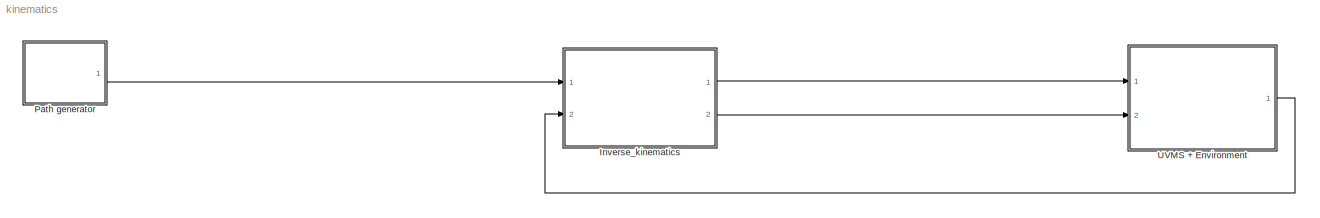
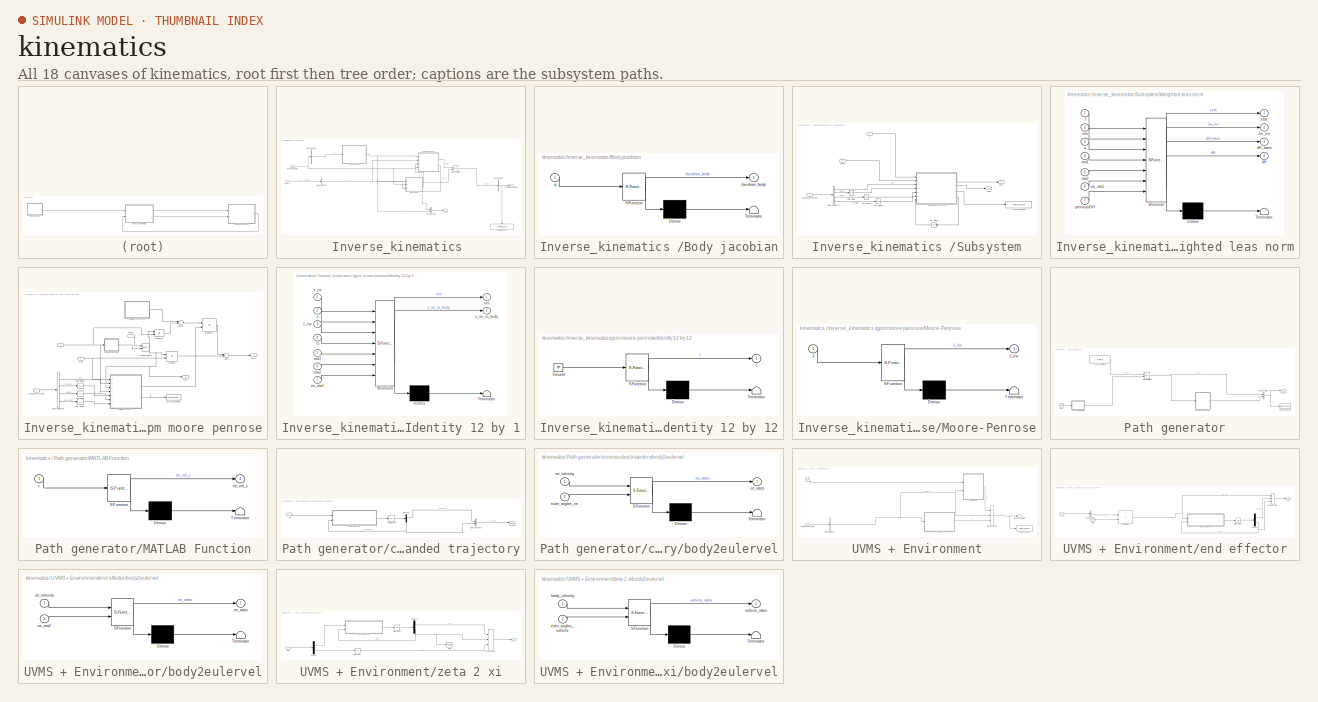
[diagram: thumbnail index - all 18 canvases of the model, root first then tree order]
MODEL kinematics
KIND model
BLOCK [SubSystem] Inverse_kinematics 
  FunctionWithSeparateData = off
  MaskHideContents = off
  MinAlgLoopOccurrences = off
  Opaque = off
  Ports = [2, 2]
  PropExecContextOutsideSubsystem = off
  RTWSystemCode = Auto
  RequestExecContextInheritance = off
  SID = 111
BLOCK [SubSystem] Inverse_kinematics /Body jacobian
  ErrorFcn = Stateflow.Translate.translate
  FunctionWithSeparateData = off
  MaskDescription = Embedded MATLAB block
  MaskDisplay = bgColor = Simulink.Root.ColorString2Rgb(get_param(gcbh, 'BackgroundColor')); image(imread('private/eml_membrane_16.png','png','BackgroundColor',bgColor(1:3)),'center'); disp([10 10 'fcn']);  <repeated x5 — deduplicated; at blocks: Body jacobian, MATLAB Function, body2eulervel>
  MaskHideContents = off
  MaskIconFrame = on
  MaskIconOpaque = off
  MaskIconRotate = none
  MaskIconUnits = normalized
  MaskPortRotate = default
  MaskSelfModifiable = on
  MaskType = Stateflow
  MinAlgLoopOccurrences = off
  Opaque = off
  PermitHierarchicalResolution = ExplicitOnly
  Ports = [1, 1]
  PropExecContextOutsideSubsystem = off
  RTWSystemCode = Auto
  RequestExecContextInheritance = off
  SFBlockType = MATLAB Function
  SID = 4
  TreatAsAtomicUnit = on
BLOCK [Demux] Inverse_kinematics /Body jacobian/ Demux 
  Outputs = 1
  Ports = [1, 1]
  SID = 4::20
BLOCK [S-Function] Inverse_kinematics /Body jacobian/ SFunction 
  EnableBusSupport = on
  FunctionName = sf_sfun
  PortCounts = [1 2]
  Ports = [1, 2]
  SID = 4::19
  Tag = Stateflow S-Function kinematics 2
BLOCK [Terminator] Inverse_kinematics /Body jacobian/ Terminator 
  SID = 4::22
BLOCK [Outport] Inverse_kinematics /Body jacobian/Jacobian_body
  IconDisplay = Port number
  SID = 4::5
BLOCK [Inport] Inverse_kinematics /Body jacobian/q
  IconDisplay = Port number
  SID = 4::1
BLOCK [BusCreator] Inverse_kinematics /Bus\nCreator
  DisplayOption = bar
  Inputs = 1
  Ports = [1, 1]
  SID = 327
BLOCK [BusCreator] Inverse_kinematics /Bus\nCreator1
  DisplayOption = bar
  Inputs = 2
  Ports = [2, 1]
  SID = 394
BLOCK [BusSelector] Inverse_kinematics /Bus\nSelector
  OutputSignals = xi.q
  Ports = [1, 1]
  SID = 154
BLOCK [BusSelector] Inverse_kinematics /Bus\nSelector1
  OutputSignals = v_ee_c
  Ports = [1, 1]
  SID = 503
BLOCK [Outport] Inverse_kinematics /J,J_inv
  IconDisplay = Port number
  SID = 395
BLOCK [Reference] Inverse_kinematics /Manual Switch  REF=simulink/Signal\nRouting/Manual Switch
  Ports = [2, 1]
  SID = 533
  SourceBlock = simulink/Signal\nRouting/Manual Switch
  SourceType = Manual Switch
  action = 0
  sw = 0
  varsize = off
BLOCK [SubSystem] Inverse_kinematics /Subsystem
  FunctionWithSeparateData = off
  MaskHideContents = off
  MinAlgLoopOccurrences = off
  Opaque = off
  Ports = [3, 2]
  PropExecContextOutsideSubsystem = off
  RTWSystemCode = Auto
  RequestExecContextInheritance = off
  SID = 535
BLOCK [BusSelector] Inverse_kinematics /Subsystem/Bus\nSelector
  OutputSignals = xi.q,xi.eta1,xi.eta2,ee.ee_eta1
  Ports = [1, 4]
  SID = 541
BLOCK [Inport] Inverse_kinematics /Subsystem/J
  IconDisplay = Port number
  SID = 536
BLOCK [ToWorkspace] Inverse_kinematics /Subsystem/To Workspace1
  MaxDataPoints = inf
  Ports = [1]
  SID = 556
  SampleTime = -1
  SaveFormat = Timeseries
  VariableName = H_matrix
BLOCK [UnitDelay] Inverse_kinematics /Subsystem/Unit Delay
  InputProcessing = Elements as channels (sample based)
  SID = 546
  SampleTime = -1
  X0 = initial_eta1
BLOCK [UnitDelay] Inverse_kinematics /Subsystem/Unit Delay1
  InputProcessing = Elements as channels (sample based)
  SID = 547
  SampleTime = -1
  X0 = initial_eta2
BLOCK [UnitDelay] Inverse_kinematics /Subsystem/Unit Delay2
  InputProcessing = Elements as channels (sample based)
  SID = 548
  SampleTime = -1
  X0 = initial_ee_eta(4:6)
BLOCK [UnitDelay] Inverse_kinematics /Subsystem/Unit Delay3
  InputProcessing = Elements as channels (sample based)
  SID = 557
  SampleTime = -1
  X0 = zeros(12,12)
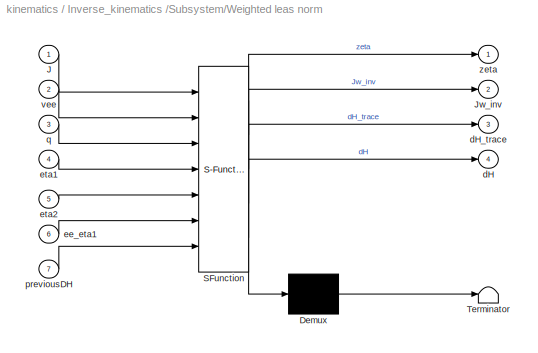
BLOCK [SubSystem] Inverse_kinematics /Subsystem/Weighted leas norm
  ErrorFcn = Stateflow.Translate.translate
  FunctionWithSeparateData = off
  MaskDescription = Embedded MATLAB block
  MaskDisplay = bgColor = Simulink.Root.ColorString2Rgb(get_param(gcbh, 'BackgroundColor')); image(imread('private/eml_membrane_16.png','png','BackgroundColor',bgColor(1:3)),'center'); disp([10 10 'wln']);
  MaskHideContents = off
  MaskIconFrame = on
  MaskIconOpaque = off
  MaskIconRotate = none
  MaskIconUnits = normalized
  MaskPortRotate = default
  MaskSelfModifiable = on
  MaskType = Stateflow
  MinAlgLoopOccurrences = off
  Opaque = off
  PermitHierarchicalResolution = ExplicitOnly
  Ports = [7, 4]
  PropExecContextOutsideSubsystem = off
  RTWSystemCode = Auto
  RequestExecContextInheritance = off
  SFBlockType = MATLAB Function
  SID = 532
  TreatAsAtomicUnit = on
BLOCK [Demux] Inverse_kinematics /Subsystem/Weighted leas norm/ Demux 
  Outputs = 1
  Ports = [1, 1]
  SID = 532::20
BLOCK [S-Function] Inverse_kinematics /Subsystem/Weighted leas norm/ SFunction 
  EnableBusSupport = on
  FunctionName = sf_sfun
  Parameters = a,alpha,d,qmax,qmin
  PortCounts = [7 5]
  Ports = [7, 5]
  SID = 532::19
  Tag = Stateflow S-Function kinematics 6
BLOCK [Terminator] Inverse_kinematics /Subsystem/Weighted leas norm/ Terminator 
  SID = 532::22
BLOCK [Inport] Inverse_kinematics /Subsystem/Weighted leas norm/J
  IconDisplay = Port number
  SID = 532::1
BLOCK [Outport] Inverse_kinematics /Subsystem/Weighted leas norm/Jw_inv
  IconDisplay = Port number
  Port = 2
  SID = 532::33
BLOCK [Outport] Inverse_kinematics /Subsystem/Weighted leas norm/dH
  IconDisplay = Port number
  Port = 4
  SID = 532::35
BLOCK [Outport] Inverse_kinematics /Subsystem/Weighted leas norm/dH_trace
  IconDisplay = Port number
  Port = 3
  SID = 532::34
BLOCK [Inport] Inverse_kinematics /Subsystem/Weighted leas norm/ee_eta1
  IconDisplay = Port number
  Port = 6
  SID = 532::29
BLOCK [Inport] Inverse_kinematics /Subsystem/Weighted leas norm/eta1
  IconDisplay = Port number
  Port = 4
  SID = 532::26
BLOCK [Inport] Inverse_kinematics /Subsystem/Weighted leas norm/eta2
  IconDisplay = Port number
  Port = 5
  SID = 532::25
BLOCK [Inport] Inverse_kinematics /Subsystem/Weighted leas norm/previousDH
  IconDisplay = Port number
  Port = 7
  SID = 532::36
BLOCK [Inport] Inverse_kinematics /Subsystem/Weighted leas norm/q
  IconDisplay = Port number
  Port = 3
  SID = 532::24
BLOCK [Inport] Inverse_kinematics /Subsystem/Weighted leas norm/vee
  IconDisplay = Port number
  Port = 2
  SID = 532::23
BLOCK [Outport] Inverse_kinematics /Subsystem/Weighted leas norm/zeta
  IconDisplay = Port number
  SID = 532::5
BLOCK [Outport] Inverse_kinematics /Subsystem/jw_inv
  IconDisplay = Port number
  Port = 2
  SID = 549
BLOCK [Inport] Inverse_kinematics /Subsystem/measured states
  IconDisplay = Port number
  Port = 2
  SID = 537
BLOCK [Inport] Inverse_kinematics /Subsystem/v_ee_c
  IconDisplay = Port number
  Port = 3
  SID = 539
BLOCK [Outport] Inverse_kinematics /Subsystem/zeta
  IconDisplay = Port number
  SID = 538
BLOCK [ToWorkspace] Inverse_kinematics /To Workspace1
  MaxDataPoints = inf
  Ports = [1]
  SID = 427
  SampleTime = -1
  SaveFormat = Timeseries
  VariableName = commanded_states
BLOCK [Outport] Inverse_kinematics /commanded states
  IconDisplay = Port number
  Port = 2
  SID = 328
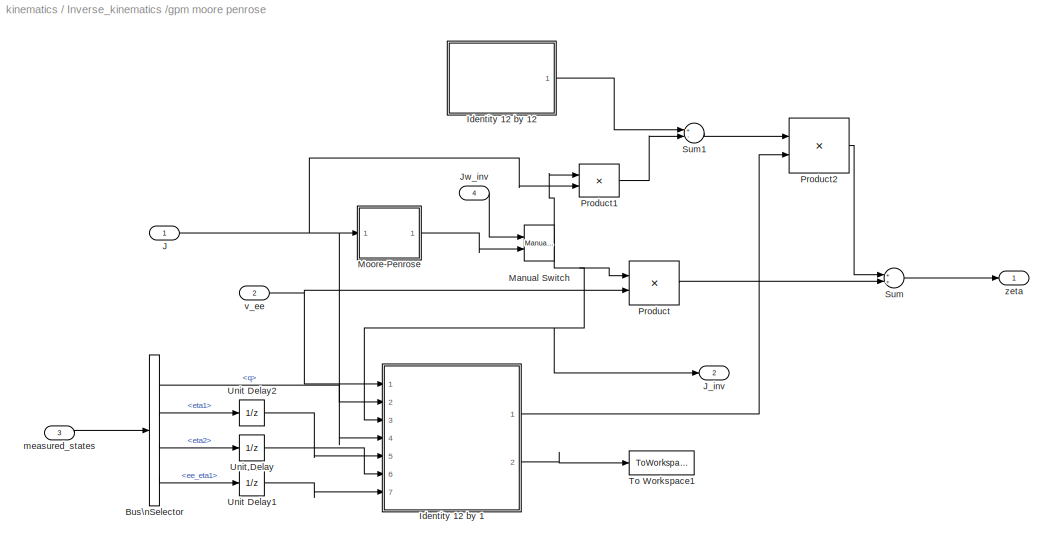
BLOCK [SubSystem] Inverse_kinematics /gpm moore penrose
  FunctionWithSeparateData = off
  MaskHideContents = off
  MinAlgLoopOccurrences = off
  Opaque = off
  Ports = [4, 2]
  PropExecContextOutsideSubsystem = off
  RTWSystemCode = Auto
  RequestExecContextInheritance = off
  SID = 146
BLOCK [BusSelector] Inverse_kinematics /gpm moore penrose/Bus\nSelector
  OutputSignals = xi.q,xi.eta1,xi.eta2,ee.ee_eta1
  Ports = [1, 4]
  SID = 515
BLOCK [SubSystem] Inverse_kinematics /gpm moore penrose/Identity 12 by 1
  ErrorFcn = Stateflow.Translate.translate
  FunctionWithSeparateData = off
  MaskDescription = Embedded MATLAB block
  MaskDisplay = bgColor = Simulink.Root.ColorString2Rgb(get_param(gcbh, 'BackgroundColor')); image(imread('private/eml_membrane_16.png','png','BackgroundColor',bgColor(1:3)),'center'); disp([10 10 'H_grad']);
  MaskHideContents = off
  MaskIconFrame = on
  MaskIconOpaque = off
  MaskIconRotate = none
  MaskIconUnits = normalized
  MaskPortRotate = default
  MaskSelfModifiable = on
  MaskType = Stateflow
  MinAlgLoopOccurrences = off
  Opaque = off
  PermitHierarchicalResolution = ExplicitOnly
  Ports = [7, 2]
  PropExecContextOutsideSubsystem = off
  RTWSystemCode = Auto
  RequestExecContextInheritance = off
  SFBlockType = MATLAB Function
  SID = 508
  TreatAsAtomicUnit = on
BLOCK [Demux] Inverse_kinematics /gpm moore penrose/Identity 12 by 1/ Demux 
  Outputs = 1
  Ports = [1, 1]
  SID = 508::20
BLOCK [S-Function] Inverse_kinematics /gpm moore penrose/Identity 12 by 1/ SFunction 
  EnableBusSupport = on
  FunctionName = sf_sfun
  Parameters = a,alpha,d,qmax,qmin
  PortCounts = [7 3]
  Ports = [7, 3]
  SID = 508::19
  Tag = Stateflow S-Function kinematics 8
BLOCK [Terminator] Inverse_kinematics /gpm moore penrose/Identity 12 by 1/ Terminator 
  SID = 508::22
BLOCK [Inport] Inverse_kinematics /gpm moore penrose/Identity 12 by 1/J
  IconDisplay = Port number
  Port = 2
  SID = 508::30
BLOCK [Inport] Inverse_kinematics /gpm moore penrose/Identity 12 by 1/J_inv
  IconDisplay = Port number
  Port = 3
  SID = 508::31
BLOCK [Inport] Inverse_kinematics /gpm moore penrose/Identity 12 by 1/ee_eta1
  IconDisplay = Port number
  Port = 7
  SID = 508::29
BLOCK [Inport] Inverse_kinematics /gpm moore penrose/Identity 12 by 1/eta1
  IconDisplay = Port number
  Port = 5
  SID = 508::28
BLOCK [Inport] Inverse_kinematics /gpm moore penrose/Identity 12 by 1/eta2
  IconDisplay = Port number
  Port = 6
  SID = 508::25
BLOCK [Inport] Inverse_kinematics /gpm moore penrose/Identity 12 by 1/q
  IconDisplay = Port number
  Port = 4
  SID = 508::24
BLOCK [Inport] Inverse_kinematics /gpm moore penrose/Identity 12 by 1/v_ee
  IconDisplay = Port number
  SID = 508::32
BLOCK [Outport] Inverse_kinematics /gpm moore penrose/Identity 12 by 1/vec
  IconDisplay = Port number
  SID = 508::5
BLOCK [Outport] Inverse_kinematics /gpm moore penrose/Identity 12 by 1/x_ee_in_body
  IconDisplay = Port number
  Port = 2
  SID = 508::36
BLOCK [SubSystem] Inverse_kinematics /gpm moore penrose/Identity 12 by 12
  ErrorFcn = Stateflow.Translate.translate
  FunctionWithSeparateData = off
  MaskDescription = Embedded MATLAB block
  MaskDisplay = bgColor = Simulink.Root.ColorString2Rgb(get_param(gcbh, 'BackgroundColor')); image(imread('private/eml_membrane_16.png','png','BackgroundColor',bgColor(1:3)),'center'); disp([10 10 'Identity_mat']);
  MaskHideContents = off
  MaskIconFrame = on
  MaskIconOpaque = off
  MaskIconRotate = none
  MaskIconUnits = normalized
  MaskPortRotate = default
  MaskSelfModifiable = on
  MaskType = Stateflow
  MinAlgLoopOccurrences = off
  Opaque = off
  PermitHierarchicalResolution = ExplicitOnly
  Ports = [0, 1]
  PropExecContextOutsideSubsystem = off
  RTWSystemCode = Auto
  RequestExecContextInheritance = off
  SFBlockType = MATLAB Function
  SID = 106
  TreatAsAtomicUnit = on
BLOCK [Demux] Inverse_kinematics /gpm moore penrose/Identity 12 by 12/ Demux 
  Outputs = 1
  Ports = [1, 1]
  SID = 106::20
BLOCK [Ground] Inverse_kinematics /gpm moore penrose/Identity 12 by 12/ Ground 
  SID = 106::23
BLOCK [S-Function] Inverse_kinematics /gpm moore penrose/Identity 12 by 12/ SFunction 
  EnableBusSupport = on
  FunctionName = sf_sfun
  PortCounts = [1 2]
  Ports = [1, 2]
  SID = 106::19
  Tag = Stateflow S-Function kinematics 1
BLOCK [Terminator] Inverse_kinematics /gpm moore penrose/Identity 12 by 12/ Terminator 
  SID = 106::22
BLOCK [Outport] Inverse_kinematics /gpm moore penrose/Identity 12 by 12/I
  IconDisplay = Port number
  SID = 106::5
BLOCK [Inport] Inverse_kinematics /gpm moore penrose/J
  IconDisplay = Port number
  SID = 147
BLOCK [Outport] Inverse_kinematics /gpm moore penrose/J_inv
  IconDisplay = Port number
  Port = 2
  SID = 393
BLOCK [Inport] Inverse_kinematics /gpm moore penrose/Jw_inv
  IconDisplay = Port number
  Port = 4
  SID = 550
BLOCK [Reference] Inverse_kinematics /gpm moore penrose/Manual Switch  REF=simulink/Signal\nRouting/Manual Switch
  Ports = [2, 1]
  SID = 551
  SourceBlock = simulink/Signal\nRouting/Manual Switch
  SourceType = Manual Switch
  action = 0
  sw = 1
  varsize = off
BLOCK [SubSystem] Inverse_kinematics /gpm moore penrose/Moore-Penrose
  ErrorFcn = Stateflow.Translate.translate
  FunctionWithSeparateData = off
  MaskDescription = Embedded MATLAB block
  MaskDisplay = bgColor = Simulink.Root.ColorString2Rgb(get_param(gcbh, 'BackgroundColor')); image(imread('private/eml_membrane_16.png','png','BackgroundColor',bgColor(1:3)),'center'); disp([10 10 'moore_penrose']);
  MaskHideContents = off
  MaskIconFrame = on
  MaskIconOpaque = off
  MaskIconRotate = none
  MaskIconUnits = normalized
  MaskPortRotate = default
  MaskSelfModifiable = on
  MaskType = Stateflow
  MinAlgLoopOccurrences = off
  Opaque = off
  PermitHierarchicalResolution = ExplicitOnly
  Ports = [1, 1]
  PropExecContextOutsideSubsystem = off
  RTWSystemCode = Auto
  RequestExecContextInheritance = off
  SFBlockType = MATLAB Function
  SID = 102
  TreatAsAtomicUnit = on
BLOCK [Demux] Inverse_kinematics /gpm moore penrose/Moore-Penrose/ Demux 
  Outputs = 1
  Ports = [1, 1]
  SID = 102::20
BLOCK [S-Function] Inverse_kinematics /gpm moore penrose/Moore-Penrose/ SFunction 
  EnableBusSupport = on
  FunctionName = sf_sfun
  PortCounts = [1 2]
  Ports = [1, 2]
  SID = 102::19
  Tag = Stateflow S-Function kinematics 4
BLOCK [Terminator] Inverse_kinematics /gpm moore penrose/Moore-Penrose/ Terminator 
  SID = 102::22
BLOCK [Inport] Inverse_kinematics /gpm moore penrose/Moore-Penrose/J
  IconDisplay = Port number
  SID = 102::1
BLOCK [Outport] Inverse_kinematics /gpm moore penrose/Moore-Penrose/J_inv
  IconDisplay = Port number
  SID = 102::5
BLOCK [Product] Inverse_kinematics /gpm moore penrose/Product
  InputSameDT = off
  Multiplication = Matrix(*)
  OutDataTypeStr = Inherit: Inherit via internal rule
  Ports = [2, 1]
  SID = 104
  SaturateOnIntegerOverflow = off
BLOCK [Product] Inverse_kinematics /gpm moore penrose/Product1
  InputSameDT = off
  Multiplication = Matrix(*)
  OutDataTypeStr = Inherit: Inherit via internal rule
  Ports = [2, 1]
  SID = 108
  SaturateOnIntegerOverflow = off
BLOCK [Product] Inverse_kinematics /gpm moore penrose/Product2
  InputSameDT = off
  Multiplication = Matrix(*)
  OutDataTypeStr = Inherit: Inherit via internal rule
  Ports = [2, 1]
  SID = 109
  SaturateOnIntegerOverflow = off
BLOCK [Sum] Inverse_kinematics /gpm moore penrose/Sum
  InputSameDT = off
  OutDataTypeStr = Inherit: Inherit via internal rule
  Ports = [2, 1]
  SID = 105
  SaturateOnIntegerOverflow = off
BLOCK [Sum] Inverse_kinematics /gpm moore penrose/Sum1
  InputSameDT = off
  Inputs = +-
  OutDataTypeStr = Inherit: Inherit via internal rule
  Ports = [2, 1]
  SID = 107
  SaturateOnIntegerOverflow = off
BLOCK [ToWorkspace] Inverse_kinematics /gpm moore penrose/To Workspace1
  MaxDataPoints = inf
  Ports = [1]
  SID = 555
  SampleTime = -1
  SaveFormat = Timeseries
  VariableName = x_ee_in_body
BLOCK [UnitDelay] Inverse_kinematics /gpm moore penrose/Unit Delay
  InputProcessing = Elements as channels (sample based)
  SID = 529
  SampleTime = -1
  X0 = initial_eta2
BLOCK [UnitDelay] Inverse_kinematics /gpm moore penrose/Unit Delay1
  InputProcessing = Elements as channels (sample based)
  SID = 530
  SampleTime = -1
  X0 = initial_ee_eta(1:3)
BLOCK [UnitDelay] Inverse_kinematics /gpm moore penrose/Unit Delay2
  InputProcessing = Elements as channels (sample based)
  SID = 531
  SampleTime = -1
  X0 = initial_eta1
BLOCK [Inport] Inverse_kinematics /gpm moore penrose/measured_states
  IconDisplay = Port number
  Port = 3
  SID = 513
BLOCK [Inport] Inverse_kinematics /gpm moore penrose/v_ee
  IconDisplay = Port number
  Port = 2
  SID = 148
BLOCK [Outport] Inverse_kinematics /gpm moore penrose/zeta
  IconDisplay = Port number
  SID = 150
BLOCK [Inport] Inverse_kinematics /measured states
  IconDisplay = Port number
  Port = 2
  SID = 153
BLOCK [Inport] Inverse_kinematics /v_ee_c
  IconDisplay = Port number
  SID = 222
BLOCK [SubSystem] Path generator
  FunctionWithSeparateData = off
  MaskHideContents = off
  MinAlgLoopOccurrences = off
  Opaque = off
  Ports = [0, 1]
  PropExecContextOutsideSubsystem = off
  RTWSystemCode = Auto
  RequestExecContextInheritance = off
  SID = 165
BLOCK [BusCreator] Path generator/Bus\nCreator
  DisplayOption = bar
  Inputs = 2
  Ports = [2, 1]
  SID = 428
BLOCK [Clock] Path generator/Clock
  SID = 553
BLOCK [SubSystem] Path generator/MATLAB Function
  ErrorFcn = Stateflow.Translate.translate
  FunctionWithSeparateData = off
  MaskDescription = Embedded MATLAB block
  MaskHideContents = off
  MaskIconFrame = on
  MaskIconOpaque = off
  MaskIconRotate = none
  MaskIconUnits = normalized
  MaskPortRotate = default
  MaskSelfModifiable = on
  MaskType = Stateflow
  MinAlgLoopOccurrences = off
  Opaque = off
  PermitHierarchicalResolution = ExplicitOnly
  Ports = [1, 1]
  PropExecContextOutsideSubsystem = off
  RTWSystemCode = Auto
  RequestExecContextInheritance = off
  SFBlockType = MATLAB Function
  SID = 554
  TreatAsAtomicUnit = on
BLOCK [Demux] Path generator/MATLAB Function/ Demux 
  Outputs = 1
  Ports = [1, 1]
  SID = 554::20
BLOCK [S-Function] Path generator/MATLAB Function/ SFunction 
  EnableBusSupport = on
  FunctionName = sf_sfun
  PortCounts = [1 2]
  Ports = [1, 2]
  SID = 554::19
  Tag = Stateflow S-Function kinematics 3
BLOCK [Terminator] Path generator/MATLAB Function/ Terminator 
  SID = 554::22
BLOCK [Outport] Path generator/MATLAB Function/ee_vel_c
  IconDisplay = Port number
  SID = 554::5
BLOCK [Inport] Path generator/MATLAB Function/t
  IconDisplay = Port number
  SID = 554::1
BLOCK [Reference] Path generator/Manual Switch  REF=simulink/Signal\nRouting/Manual Switch
  Ports = [2, 1]
  SID = 552
  SourceBlock = simulink/Signal\nRouting/Manual Switch
  SourceType = Manual Switch
  action = 0
  sw = 0
  varsize = off
BLOCK [ToWorkspace] Path generator/To Workspace
  MaxDataPoints = inf
  Ports = [1]
  SID = 432
  SampleTime = -1
  SaveFormat = Timeseries
  VariableName = path_c
BLOCK [SubSystem] Path generator/commanded trajectory
  FunctionWithSeparateData = off
  MaskHideContents = off
  MinAlgLoopOccurrences = off
  Opaque = off
  Ports = [1, 1]
  PropExecContextOutsideSubsystem = off
  RTWSystemCode = Auto
  RequestExecContextInheritance = off
  SID = 175
BLOCK [BusCreator] Path generator/commanded trajectory/Bus\nCreator
  DisplayOption = bar
  Inputs = 2
  Ports = [2, 1]
  SID = 333
BLOCK [Demux] Path generator/commanded trajectory/Demux
  DisplayOption = bar
  Outputs = 2
  Ports = [1, 2]
  SID = 177
BLOCK [Integrator] Path generator/commanded trajectory/Integrator
  InitialCondition = initial_ee_eta
  Ports = [1, 1]
  SID = 178
BLOCK [SubSystem] Path generator/commanded trajectory/body2eulervel
  ErrorFcn = Stateflow.Translate.translate
  FunctionWithSeparateData = off
  MaskDescription = Embedded MATLAB block
  MaskHideContents = off
  MaskIconFrame = on
  MaskIconOpaque = off
  MaskIconRotate = none
  MaskIconUnits = normalized
  MaskPortRotate = default
  MaskSelfModifiable = on
  MaskType = Stateflow
  MinAlgLoopOccurrences = off
  Opaque = off
  PermitHierarchicalResolution = ExplicitOnly
  Ports = [2, 1]
  PropExecContextOutsideSubsystem = off
  RTWSystemCode = Auto
  RequestExecContextInheritance = off
  SFBlockType = MATLAB Function
  SID = 182
  TreatAsAtomicUnit = on
BLOCK [Demux] Path generator/commanded trajectory/body2eulervel/ Demux 
  Outputs = 1
  Ports = [1, 1]
  SID = 182::20
BLOCK [S-Function] Path generator/commanded trajectory/body2eulervel/ SFunction 
  EnableBusSupport = on
  FunctionName = sf_sfun
  PortCounts = [2 2]
  Ports = [2, 2]
  SID = 182::19
  Tag = Stateflow S-Function kinematics 7
BLOCK [Terminator] Path generator/commanded trajectory/body2eulervel/ Terminator 
  SID = 182::22
BLOCK [Outport] Path generator/commanded trajectory/body2eulervel/ee_rates
  IconDisplay = Port number
  SID = 182::5
BLOCK [Inport] Path generator/commanded trajectory/body2eulervel/ee_velocity
  IconDisplay = Port number
  SID = 182::1
BLOCK [Inport] Path generator/commanded trajectory/body2eulervel/euler_angles_ee
  IconDisplay = Port number
  Port = 2
  SID = 182::23
BLOCK [Outport] Path generator/commanded trajectory/ee_pose
  IconDisplay = Port number
  SID = 334
BLOCK [Inport] Path generator/commanded trajectory/v_ee
  IconDisplay = Port number
  SID = 176
BLOCK [Outport] Path generator/v_ee_c
  IconDisplay = Port number
  SID = 166
BLOCK [Constant] Path generator/v_ee_command
  SID = 103
  Value = v_ee_c
BLOCK [SubSystem] UVMS + Environment
  FunctionWithSeparateData = off
  MaskHideContents = off
  MinAlgLoopOccurrences = off
  Opaque = off
  Ports = [2, 1]
  PropExecContextOutsideSubsystem = off
  RTWSystemCode = Auto
  RequestExecContextInheritance = off
  SID = 236
BLOCK [BusCreator] UVMS + Environment/Bus\nCreator
  DisplayOption = bar
  Inputs = 3
  Ports = [3, 1]
  SID = 322
BLOCK [BusSelector] UVMS + Environment/Bus\nSelector1
  OutputSignals = zeta_c
  Ports = [1, 1]
  SID = 501
BLOCK [Inport] UVMS + Environment/J,J_inv
  IconDisplay = Port number
  SID = 299
BLOCK [ToWorkspace] UVMS + Environment/To Workspace2
  MaxDataPoints = inf
  Ports = [1]
  SID = 423
  SampleTime = -1
  SaveFormat = Timeseries
  VariableName = measured_states
BLOCK [Inport] UVMS + Environment/commanded_states
  IconDisplay = Port number
  Port = 2
  SID = 237
BLOCK [SubSystem] UVMS + Environment/end effector
  FunctionWithSeparateData = off
  MaskHideContents = off
  MinAlgLoopOccurrences = off
  Opaque = off
  Ports = [2, 1]
  PropExecContextOutsideSubsystem = off
  RTWSystemCode = Auto
  RequestExecContextInheritance = off
  SID = 294
BLOCK [BusCreator] UVMS + Environment/end effector/Bus\nCreator
  DisplayOption = bar
  Inputs = 3
  Ports = [3, 1]
  SID = 316
BLOCK [BusSelector] UVMS + Environment/end effector/Bus\nSelector
  OutputSignals = J
  Ports = [1, 1]
  SID = 397
BLOCK [Demux] UVMS + Environment/end effector/Demux2
  DisplayOption = bar
  Outputs = 2
  Ports = [1, 2]
  SID = 300
BLOCK [Integrator] UVMS + Environment/end effector/Integrator2
  InitialCondition = initial_ee_eta
  Ports = [1, 1]
  SID = 301
BLOCK [Inport] UVMS + Environment/end effector/J, J_inv
  IconDisplay = Port number
  SID = 296
BLOCK [Product] UVMS + Environment/end effector/Product
  InputSameDT = off
  Multiplication = Matrix(*)
  OutDataTypeStr = Inherit: Inherit via internal rule
  Ports = [2, 1]
  SID = 297
  SaturateOnIntegerOverflow = off
BLOCK [SubSystem] UVMS + Environment/end effector/body2eulervel
  ErrorFcn = Stateflow.Translate.translate
  FunctionWithSeparateData = off
  MaskDescription = Embedded MATLAB block
  MaskHideContents = off
  MaskIconFrame = on
  MaskIconOpaque = off
  MaskIconRotate = none
  MaskIconUnits = normalized
  MaskPortRotate = default
  MaskSelfModifiable = on
  MaskType = Stateflow
  MinAlgLoopOccurrences = off
  Opaque = off
  PermitHierarchicalResolution = ExplicitOnly
  Ports = [2, 1]
  PropExecContextOutsideSubsystem = off
  RTWSystemCode = Auto
  RequestExecContextInheritance = off
  SFBlockType = MATLAB Function
  SID = 302
  TreatAsAtomicUnit = on
BLOCK [Demux] UVMS + Environment/end effector/body2eulervel/ Demux 
  Outputs = 1
  Ports = [1, 1]
  SID = 302::20
BLOCK [S-Function] UVMS + Environment/end effector/body2eulervel/ SFunction 
  EnableBusSupport = on
  FunctionName = sf_sfun
  PortCounts = [2 2]
  Ports = [2, 2]
  SID = 302::19
  Tag = Stateflow S-Function kinematics 5
BLOCK [Terminator] UVMS + Environment/end effector/body2eulervel/ Terminator 
  SID = 302::22
BLOCK [Inport] UVMS + Environment/end effector/body2eulervel/ee_eta2
  IconDisplay = Port number
  Port = 2
  SID = 302::23
BLOCK [Outport] UVMS + Environment/end effector/body2eulervel/ee_rates
  IconDisplay = Port number
  SID = 302::5
BLOCK [Inport] UVMS + Environment/end effector/body2eulervel/ee_velocity
  IconDisplay = Port number
  SID = 302::1
BLOCK [Outport] UVMS + Environment/end effector/ee
  IconDisplay = Port number
  SID = 317
BLOCK [Inport] UVMS + Environment/end effector/zeta
  IconDisplay = Port number
  Port = 2
  SID = 295
BLOCK [Outport] UVMS + Environment/measured states
  IconDisplay = Port number
  SID = 239
BLOCK [SubSystem] UVMS + Environment/zeta 2 xi
  FunctionWithSeparateData = off
  MaskHideContents = off
  MinAlgLoopOccurrences = off
  Opaque = off
  Ports = [1, 1]
  PropExecContextOutsideSubsystem = off
  RTWSystemCode = Auto
  RequestExecContextInheritance = off
  SID = 260
BLOCK [BusCreator] UVMS + Environment/zeta 2 xi/Bus\nCreator
  DisplayOption = bar
  Inputs = 3
  Ports = [3, 1]
  SID = 275
BLOCK [Demux] UVMS + Environment/zeta 2 xi/Demux1
  DisplayOption = bar
  Outputs = 2
  Ports = [1, 2]
  SID = 262
BLOCK [Demux] UVMS + Environment/zeta 2 xi/Demux2
  DisplayOption = bar
  Outputs = 2
  Ports = [1, 2]
  SID = 263
BLOCK [Goto] UVMS + Environment/zeta 2 xi/Goto
  GotoTag = myeta2
  IconDisplay = Signal name
  SID = 527
  TagVisibility = global
BLOCK [Integrator] UVMS + Environment/zeta 2 xi/Integrator1
  InitialCondition = initial_q
  Ports = [1, 1]
  SID = 264
BLOCK [Integrator] UVMS + Environment/zeta 2 xi/Integrator2
  InitialCondition = initial_eta
  Ports = [1, 1]
  SID = 265
BLOCK [SubSystem] UVMS + Environment/zeta 2 xi/body2eulervel
  ErrorFcn = Stateflow.Translate.translate
  FunctionWithSeparateData = off
  MaskDescription = Embedded MATLAB block
  MaskHideContents = off
  MaskIconFrame = on
  MaskIconOpaque = off
  MaskIconRotate = none
  MaskIconUnits = normalized
  MaskPortRotate = default
  MaskSelfModifiable = on
  MaskType = Stateflow
  MinAlgLoopOccurrences = off
  Opaque = off
  PermitHierarchicalResolution = ExplicitOnly
  Ports = [2, 1]
  PropExecContextOutsideSubsystem = off
  RTWSystemCode = Auto
  RequestExecContextInheritance = off
  SFBlockType = MATLAB Function
  SID = 269
  TreatAsAtomicUnit = on
BLOCK [Demux] UVMS + Environment/zeta 2 xi/body2eulervel/ Demux 
  Outputs = 1
  Ports = [1, 1]
  SID = 269::20
BLOCK [S-Function] UVMS + Environment/zeta 2 xi/body2eulervel/ SFunction 
  EnableBusSupport = on
  FunctionName = sf_sfun
  PortCounts = [2 2]
  Ports = [2, 2]
  SID = 269::19
  Tag = Stateflow S-Function kinematics 11
BLOCK [Terminator] UVMS + Environment/zeta 2 xi/body2eulervel/ Terminator 
  SID = 269::22
BLOCK [Inport] UVMS + Environment/zeta 2 xi/body2eulervel/body_velocity
  IconDisplay = Port number
  SID = 269::1
BLOCK [Inport] UVMS + Environment/zeta 2 xi/body2eulervel/euler_angles_vehicle
  IconDisplay = Port number
  Port = 2
  SID = 269::23
BLOCK [Outport] UVMS + Environment/zeta 2 xi/body2eulervel/vehicle_rates
  IconDisplay = Port number
  SID = 269::5
BLOCK [Outport] UVMS + Environment/zeta 2 xi/xi
  IconDisplay = Port number
  SID = 276
BLOCK [Inport] UVMS + Environment/zeta 2 xi/zeta
  IconDisplay = Port number
  SID = 261
LINE Inverse_kinematics /Body jacobian/ Demux :1 -> Inverse_kinematics /Body jacobian/ Terminator :1
LINE Inverse_kinematics /Body jacobian/ SFunction :1 -> Inverse_kinematics /Body jacobian/ Demux :1
LINE Inverse_kinematics /Body jacobian/ SFunction :2 -> Inverse_kinematics /Body jacobian/Jacobian_body:1
LINE Inverse_kinematics /Body jacobian/q:1 -> Inverse_kinematics /Body jacobian/ SFunction :1
NET Inverse_kinematics /Body jacobian:1 -> Inverse_kinematics /Bus\nCreator1:2, Inverse_kinematics /Subsystem:1, Inverse_kinematics /gpm moore penrose:1
LINE Inverse_kinematics /Bus\nCreator1:1 -> Inverse_kinematics /J,J_inv:1
NET Inverse_kinematics /Bus\nCreator:1 -> Inverse_kinematics /To Workspace1:1, Inverse_kinematics /commanded states:1
NET Inverse_kinematics /Bus\nSelector1:1 -> Inverse_kinematics /Subsystem:3, Inverse_kinematics /gpm moore penrose:2
LINE Inverse_kinematics /Bus\nSelector:1 -> Inverse_kinematics /Body jacobian:1
LINE Inverse_kinematics /Manual Switch:1 -> Inverse_kinematics /Bus\nCreator:1
LINE Inverse_kinematics /Subsystem/Bus\nSelector:1 -> Inverse_kinematics /Subsystem/Weighted leas norm:3
LINE Inverse_kinematics /Subsystem/Bus\nSelector:2 -> Inverse_kinematics /Subsystem/Unit Delay:1
LINE Inverse_kinematics /Subsystem/Bus\nSelector:3 -> Inverse_kinematics /Subsystem/Unit Delay1:1
LINE Inverse_kinematics /Subsystem/Bus\nSelector:4 -> Inverse_kinematics /Subsystem/Unit Delay2:1
LINE Inverse_kinematics /Subsystem/J:1 -> Inverse_kinematics /Subsystem/Weighted leas norm:1
LINE Inverse_kinematics /Subsystem/Unit Delay1:1 -> Inverse_kinematics /Subsystem/Weighted leas norm:5
LINE Inverse_kinematics /Subsystem/Unit Delay2:1 -> Inverse_kinematics /Subsystem/Weighted leas norm:6
LINE Inverse_kinematics /Subsystem/Unit Delay3:1 -> Inverse_kinematics /Subsystem/Weighted leas norm:7
LINE Inverse_kinematics /Subsystem/Unit Delay:1 -> Inverse_kinematics /Subsystem/Weighted leas norm:4
LINE Inverse_kinematics /Subsystem/Weighted leas norm/ Demux :1 -> Inverse_kinematics /Subsystem/Weighted leas norm/ Terminator :1
LINE Inverse_kinematics /Subsystem/Weighted leas norm/ SFunction :1 -> Inverse_kinematics /Subsystem/Weighted leas norm/ Demux :1
LINE Inverse_kinematics /Subsystem/Weighted leas norm/ SFunction :2 -> Inverse_kinematics /Subsystem/Weighted leas norm/zeta:1
LINE Inverse_kinematics /Subsystem/Weighted leas norm/ SFunction :3 -> Inverse_kinematics /Subsystem/Weighted leas norm/Jw_inv:1
LINE Inverse_kinematics /Subsystem/Weighted leas norm/ SFunction :4 -> Inverse_kinematics /Subsystem/Weighted leas norm/dH_trace:1
LINE Inverse_kinematics /Subsystem/Weighted leas norm/ SFunction :5 -> Inverse_kinematics /Subsystem/Weighted leas norm/dH:1
LINE Inverse_kinematics /Subsystem/Weighted leas norm/J:1 -> Inverse_kinematics /Subsystem/Weighted leas norm/ SFunction :1
LINE Inverse_kinematics /Subsystem/Weighted leas norm/ee_eta1:1 -> Inverse_kinematics /Subsystem/Weighted leas norm/ SFunction :6
LINE Inverse_kinematics /Subsystem/Weighted leas norm/eta1:1 -> Inverse_kinematics /Subsystem/Weighted leas norm/ SFunction :4
LINE Inverse_kinematics /Subsystem/Weighted leas norm/eta2:1 -> Inverse_kinematics /Subsystem/Weighted leas norm/ SFunction :5
LINE Inverse_kinematics /Subsystem/Weighted leas norm/previousDH:1 -> Inverse_kinematics /Subsystem/Weighted leas norm/ SFunction :7
LINE Inverse_kinematics /Subsystem/Weighted leas norm/q:1 -> Inverse_kinematics /Subsystem/Weighted leas norm/ SFunction :3
LINE Inverse_kinematics /Subsystem/Weighted leas norm/vee:1 -> Inverse_kinematics /Subsystem/Weighted leas norm/ SFunction :2
LINE Inverse_kinematics /Subsystem/Weighted leas norm:1 -> Inverse_kinematics /Subsystem/zeta:1
LINE Inverse_kinematics /Subsystem/Weighted leas norm:2 -> Inverse_kinematics /Subsystem/jw_inv:1
LINE Inverse_kinematics /Subsystem/Weighted leas norm:3 -> Inverse_kinematics /Subsystem/To Workspace1:1
LINE Inverse_kinematics /Subsystem/Weighted leas norm:4 -> Inverse_kinematics /Subsystem/Unit Delay3:1
LINE Inverse_kinematics /Subsystem/measured states:1 -> Inverse_kinematics /Subsystem/Bus\nSelector:1
LINE Inverse_kinematics /Subsystem/v_ee_c:1 -> Inverse_kinematics /Subsystem/Weighted leas norm:2
LINE Inverse_kinematics /Subsystem:1 -> Inverse_kinematics /Manual Switch:2
LINE Inverse_kinematics /Subsystem:2 -> Inverse_kinematics /gpm moore penrose:4
LINE Inverse_kinematics /gpm moore penrose/Bus\nSelector:1 -> Inverse_kinematics /gpm moore penrose/Identity 12 by 1:4
LINE Inverse_kinematics /gpm moore penrose/Bus\nSelector:2 -> Inverse_kinematics /gpm moore penrose/Unit Delay2:1
LINE Inverse_kinematics /gpm moore penrose/Bus\nSelector:3 -> Inverse_kinematics /gpm moore penrose/Unit Delay:1
LINE Inverse_kinematics /gpm moore penrose/Bus\nSelector:4 -> Inverse_kinematics /gpm moore penrose/Unit Delay1:1
LINE Inverse_kinematics /gpm moore penrose/Identity 12 by 1/ Demux :1 -> Inverse_kinematics /gpm moore penrose/Identity 12 by 1/ Terminator :1
LINE Inverse_kinematics /gpm moore penrose/Identity 12 by 1/ SFunction :1 -> Inverse_kinematics /gpm moore penrose/Identity 12 by 1/ Demux :1
LINE Inverse_kinematics /gpm moore penrose/Identity 12 by 1/ SFunction :2 -> Inverse_kinematics /gpm moore penrose/Identity 12 by 1/vec:1
LINE Inverse_kinematics /gpm moore penrose/Identity 12 by 1/ SFunction :3 -> Inverse_kinematics /gpm moore penrose/Identity 12 by 1/x_ee_in_body:1
LINE Inverse_kinematics /gpm moore penrose/Identity 12 by 1/J:1 -> Inverse_kinematics /gpm moore penrose/Identity 12 by 1/ SFunction :2
LINE Inverse_kinematics /gpm moore penrose/Identity 12 by 1/J_inv:1 -> Inverse_kinematics /gpm moore penrose/Identity 12 by 1/ SFunction :3
LINE Inverse_kinematics /gpm moore penrose/Identity 12 by 1/ee_eta1:1 -> Inverse_kinematics /gpm moore penrose/Identity 12 by 1/ SFunction :7
LINE Inverse_kinematics /gpm moore penrose/Identity 12 by 1/eta1:1 -> Inverse_kinematics /gpm moore penrose/Identity 12 by 1/ SFunction :5
LINE Inverse_kinematics /gpm moore penrose/Identity 12 by 1/eta2:1 -> Inverse_kinematics /gpm moore penrose/Identity 12 by 1/ SFunction :6
LINE Inverse_kinematics /gpm moore penrose/Identity 12 by 1/q:1 -> Inverse_kinematics /gpm moore penrose/Identity 12 by 1/ SFunction :4
LINE Inverse_kinematics /gpm moore penrose/Identity 12 by 1/v_ee:1 -> Inverse_kinematics /gpm moore penrose/Identity 12 by 1/ SFunction :1
LINE Inverse_kinematics /gpm moore penrose/Identity 12 by 12/ Demux :1 -> Inverse_kinematics /gpm moore penrose/Identity 12 by 12/ Terminator :1
LINE Inverse_kinematics /gpm moore penrose/Identity 12 by 12/ Ground :1 -> Inverse_kinematics /gpm moore penrose/Identity 12 by 12/ SFunction :1
LINE Inverse_kinematics /gpm moore penrose/Identity 12 by 12/ SFunction :1 -> Inverse_kinematics /gpm moore penrose/Identity 12 by 12/ Demux :1
LINE Inverse_kinematics /gpm moore penrose/Identity 12 by 12/ SFunction :2 -> Inverse_kinematics /gpm moore penrose/Identity 12 by 12/I:1
LINE Inverse_kinematics /gpm moore penrose/Identity 12 by 12:1 -> Inverse_kinematics /gpm moore penrose/Sum1:1
LINE Inverse_kinematics /gpm moore penrose/Identity 12 by 1:1 -> Inverse_kinematics /gpm moore penrose/Product2:2
LINE Inverse_kinematics /gpm moore penrose/Identity 12 by 1:2 -> Inverse_kinematics /gpm moore penrose/To Workspace1:1
NET Inverse_kinematics /gpm moore penrose/J:1 -> Inverse_kinematics /gpm moore penrose/Identity 12 by 1:2, Inverse_kinematics /gpm moore penrose/Moore-Penrose:1, Inverse_kinematics /gpm moore penrose/Product1:2
LINE Inverse_kinematics /gpm moore penrose/Jw_inv:1 -> Inverse_kinematics /gpm moore penrose/Manual Switch:1
NET Inverse_kinematics /gpm moore penrose/Manual Switch:1 -> Inverse_kinematics /gpm moore penrose/Identity 12 by 1:3, Inverse_kinematics /gpm moore penrose/J_inv:1, Inverse_kinematics /gpm moore penrose/Product1:1, Inverse_kinematics /gpm moore penrose/Product:1
LINE Inverse_kinematics /gpm moore penrose/Moore-Penrose/ Demux :1 -> Inverse_kinematics /gpm moore penrose/Moore-Penrose/ Terminator :1
LINE Inverse_kinematics /gpm moore penrose/Moore-Penrose/ SFunction :1 -> Inverse_kinematics /gpm moore penrose/Moore-Penrose/ Demux :1
LINE Inverse_kinematics /gpm moore penrose/Moore-Penrose/ SFunction :2 -> Inverse_kinematics /gpm moore penrose/Moore-Penrose/J_inv:1
LINE Inverse_kinematics /gpm moore penrose/Moore-Penrose/J:1 -> Inverse_kinematics /gpm moore penrose/Moore-Penrose/ SFunction :1
LINE Inverse_kinematics /gpm moore penrose/Moore-Penrose:1 -> Inverse_kinematics /gpm moore penrose/Manual Switch:2
LINE Inverse_kinematics /gpm moore penrose/Product1:1 -> Inverse_kinematics /gpm moore penrose/Sum1:2
LINE Inverse_kinematics /gpm moore penrose/Product2:1 -> Inverse_kinematics /gpm moore penrose/Sum:1
LINE Inverse_kinematics /gpm moore penrose/Product:1 -> Inverse_kinematics /gpm moore penrose/Sum:2
LINE Inverse_kinematics /gpm moore penrose/Sum1:1 -> Inverse_kinematics /gpm moore penrose/Product2:1
LINE Inverse_kinematics /gpm moore penrose/Sum:1 -> Inverse_kinematics /gpm moore penrose/zeta:1
LINE Inverse_kinematics /gpm moore penrose/Unit Delay1:1 -> Inverse_kinematics /gpm moore penrose/Identity 12 by 1:7
LINE Inverse_kinematics /gpm moore penrose/Unit Delay2:1 -> Inverse_kinematics /gpm moore penrose/Identity 12 by 1:5
LINE Inverse_kinematics /gpm moore penrose/Unit Delay:1 -> Inverse_kinematics /gpm moore penrose/Identity 12 by 1:6
LINE Inverse_kinematics /gpm moore penrose/measured_states:1 -> Inverse_kinematics /gpm moore penrose/Bus\nSelector:1
NET Inverse_kinematics /gpm moore penrose/v_ee:1 -> Inverse_kinematics /gpm moore penrose/Identity 12 by 1:1, Inverse_kinematics /gpm moore penrose/Product:2
LINE Inverse_kinematics /gpm moore penrose:1 -> Inverse_kinematics /Manual Switch:1
LINE Inverse_kinematics /gpm moore penrose:2 -> Inverse_kinematics /Bus\nCreator1:1
NET Inverse_kinematics /measured states:1 -> Inverse_kinematics /Bus\nSelector:1, Inverse_kinematics /Subsystem:2, Inverse_kinematics /gpm moore penrose:3
LINE Inverse_kinematics /v_ee_c:1 -> Inverse_kinematics /Bus\nSelector1:1
LINE Inverse_kinematics :1 -> UVMS + Environment:1
LINE Inverse_kinematics :2 -> UVMS + Environment:2
NET Path generator/Bus\nCreator:1 -> Path generator/To Workspace:1, Path generator/v_ee_c:1
LINE Path generator/Clock:1 -> Path generator/MATLAB Function:1
LINE Path generator/MATLAB Function/ Demux :1 -> Path generator/MATLAB Function/ Terminator :1
LINE Path generator/MATLAB Function/ SFunction :1 -> Path generator/MATLAB Function/ Demux :1
LINE Path generator/MATLAB Function/ SFunction :2 -> Path generator/MATLAB Function/ee_vel_c:1
LINE Path generator/MATLAB Function/t:1 -> Path generator/MATLAB Function/ SFunction :1
LINE Path generator/MATLAB Function:1 -> Path generator/Manual Switch:2
NET Path generator/Manual Switch:1 -> Path generator/Bus\nCreator:1, Path generator/commanded trajectory:1
LINE Path generator/commanded trajectory/Bus\nCreator:1 -> Path generator/commanded trajectory/ee_pose:1
LINE Path generator/commanded trajectory/Demux:1 -> Path generator/commanded trajectory/Bus\nCreator:1
NET Path generator/commanded trajectory/Demux:2 -> Path generator/commanded trajectory/Bus\nCreator:2, Path generator/commanded trajectory/body2eulervel:2
LINE Path generator/commanded trajectory/Integrator:1 -> Path generator/commanded trajectory/Demux:1
LINE Path generator/commanded trajectory/body2eulervel/ Demux :1 -> Path generator/commanded trajectory/body2eulervel/ Terminator :1
LINE Path generator/commanded trajectory/body2eulervel/ SFunction :1 -> Path generator/commanded trajectory/body2eulervel/ Demux :1
LINE Path generator/commanded trajectory/body2eulervel/ SFunction :2 -> Path generator/commanded trajectory/body2eulervel/ee_rates:1
LINE Path generator/commanded trajectory/body2eulervel/ee_velocity:1 -> Path generator/commanded trajectory/body2eulervel/ SFunction :1
LINE Path generator/commanded trajectory/body2eulervel/euler_angles_ee:1 -> Path generator/commanded trajectory/body2eulervel/ SFunction :2
LINE Path generator/commanded trajectory/body2eulervel:1 -> Path generator/commanded trajectory/Integrator:1
LINE Path generator/commanded trajectory/v_ee:1 -> Path generator/commanded trajectory/body2eulervel:1
LINE Path generator/commanded trajectory:1 -> Path generator/Bus\nCreator:2
LINE Path generator/v_ee_command:1 -> Path generator/Manual Switch:1
LINE Path generator:1 -> Inverse_kinematics :1
NET UVMS + Environment/Bus\nCreator:1 -> UVMS + Environment/To Workspace2:1, UVMS + Environment/measured states:1
NET UVMS + Environment/Bus\nSelector1:1 -> UVMS + Environment/Bus\nCreator:2, UVMS + Environment/end effector:2, UVMS + Environment/zeta 2 xi:1
LINE UVMS + Environment/J,J_inv:1 -> UVMS + Environment/end effector:1
LINE UVMS + Environment/commanded_states:1 -> UVMS + Environment/Bus\nSelector1:1
LINE UVMS + Environment/end effector/Bus\nCreator:1 -> UVMS + Environment/end effector/ee:1
LINE UVMS + Environment/end effector/Bus\nSelector:1 -> UVMS + Environment/end effector/Product:1
LINE UVMS + Environment/end effector/Demux2:1 -> UVMS + Environment/end effector/Bus\nCreator:2
NET UVMS + Environment/end effector/Demux2:2 -> UVMS + Environment/end effector/Bus\nCreator:3, UVMS + Environment/end effector/body2eulervel:2
LINE UVMS + Environment/end effector/Integrator2:1 -> UVMS + Environment/end effector/Demux2:1
LINE UVMS + Environment/end effector/J, J_inv:1 -> UVMS + Environment/end effector/Bus\nSelector:1
NET UVMS + Environment/end effector/Product:1 -> UVMS + Environment/end effector/Bus\nCreator:1, UVMS + Environment/end effector/body2eulervel:1
LINE UVMS + Environment/end effector/body2eulervel/ Demux :1 -> UVMS + Environment/end effector/body2eulervel/ Terminator :1
LINE UVMS + Environment/end effector/body2eulervel/ SFunction :1 -> UVMS + Environment/end effector/body2eulervel/ Demux :1
LINE UVMS + Environment/end effector/body2eulervel/ SFunction :2 -> UVMS + Environment/end effector/body2eulervel/ee_rates:1
LINE UVMS + Environment/end effector/body2eulervel/ee_eta2:1 -> UVMS + Environment/end effector/body2eulervel/ SFunction :2
LINE UVMS + Environment/end effector/body2eulervel/ee_velocity:1 -> UVMS + Environment/end effector/body2eulervel/ SFunction :1
LINE UVMS + Environment/end effector/body2eulervel:1 -> UVMS + Environment/end effector/Integrator2:1
LINE UVMS + Environment/end effector/zeta:1 -> UVMS + Environment/end effector/Product:2
LINE UVMS + Environment/end effector:1 -> UVMS + Environment/Bus\nCreator:1
LINE UVMS + Environment/zeta 2 xi/Bus\nCreator:1 -> UVMS + Environment/zeta 2 xi/xi:1
LINE UVMS + Environment/zeta 2 xi/Demux1:1 -> UVMS + Environment/zeta 2 xi/body2eulervel:1
LINE UVMS + Environment/zeta 2 xi/Demux1:2 -> UVMS + Environment/zeta 2 xi/Integrator1:1
LINE UVMS + Environment/zeta 2 xi/Demux2:1 -> UVMS + Environment/zeta 2 xi/Bus\nCreator:1
NET UVMS + Environment/zeta 2 xi/Demux2:2 -> UVMS + Environment/zeta 2 xi/Bus\nCreator:2, UVMS + Environment/zeta 2 xi/Goto:1, UVMS + Environment/zeta 2 xi/body2eulervel:2
LINE UVMS + Environment/zeta 2 xi/Integrator1:1 -> UVMS + Environment/zeta 2 xi/Bus\nCreator:3
LINE UVMS + Environment/zeta 2 xi/Integrator2:1 -> UVMS + Environment/zeta 2 xi/Demux2:1
LINE UVMS + Environment/zeta 2 xi/body2eulervel/ Demux :1 -> UVMS + Environment/zeta 2 xi/body2eulervel/ Terminator :1
LINE UVMS + Environment/zeta 2 xi/body2eulervel/ SFunction :1 -> UVMS + Environment/zeta 2 xi/body2eulervel/ Demux :1
LINE UVMS + Environment/zeta 2 xi/body2eulervel/ SFunction :2 -> UVMS + Environment/zeta 2 xi/body2eulervel/vehicle_rates:1
LINE UVMS + Environment/zeta 2 xi/body2eulervel/body_velocity:1 -> UVMS + Environment/zeta 2 xi/body2eulervel/ SFunction :1
LINE UVMS + Environment/zeta 2 xi/body2eulervel/euler_angles_vehicle:1 -> UVMS + Environment/zeta 2 xi/body2eulervel/ SFunction :2
LINE UVMS + Environment/zeta 2 xi/body2eulervel:1 -> UVMS + Environment/zeta 2 xi/Integrator2:1
LINE UVMS + Environment/zeta 2 xi/zeta:1 -> UVMS + Environment/zeta 2 xi/Demux1:1
LINE UVMS + Environment/zeta 2 xi:1 -> UVMS + Environment/Bus\nCreator:3
LINE UVMS + Environment:1 -> Inverse_kinematics :2
note: NET lines group one-source signal fan-out (src -> all destinations, sorted); 1:1 wires keep LINE
CHART Inverse_kinematics /gpm moore penrose/Identity 12 by 12 states=1 transitions=1
  STATE_LABEL 'eML_blk_kernel()'
CHART Inverse_kinematics /Body jacobian states=1 transitions=1
  STATE_LABEL 'eML_blk_kernel()'
CHART Path generator/MATLAB Function states=1 transitions=1
  STATE_LABEL 'eML_blk_kernel()'
CHART Inverse_kinematics /gpm moore penrose/Moore-Penrose states=1 transitions=1
  STATE_LABEL 'eML_blk_kernel()'
CHART UVMS + Environment/end effector/body2eulervel states=1 transitions=1
  STATE_LABEL 'eML_blk_kernel()'
CHART Inverse_kinematics /Subsystem/Weighted leas norm states=1 transitions=1
  STATE_LABEL 'eML_blk_kernel()'
CHART Path generator/commanded trajectory/body2eulervel states=1 transitions=1
  STATE_LABEL 'eML_blk_kernel()'
CHART Inverse_kinematics /gpm moore penrose/Identity 12 by 1 states=1 transitions=1
  STATE_LABEL 'eML_blk_kernel()'
CHART UVMS + Environment/zeta 2 xi/body2eulervel states=1 transitions=1
  STATE_LABEL 'eML_blk_kernel()'
